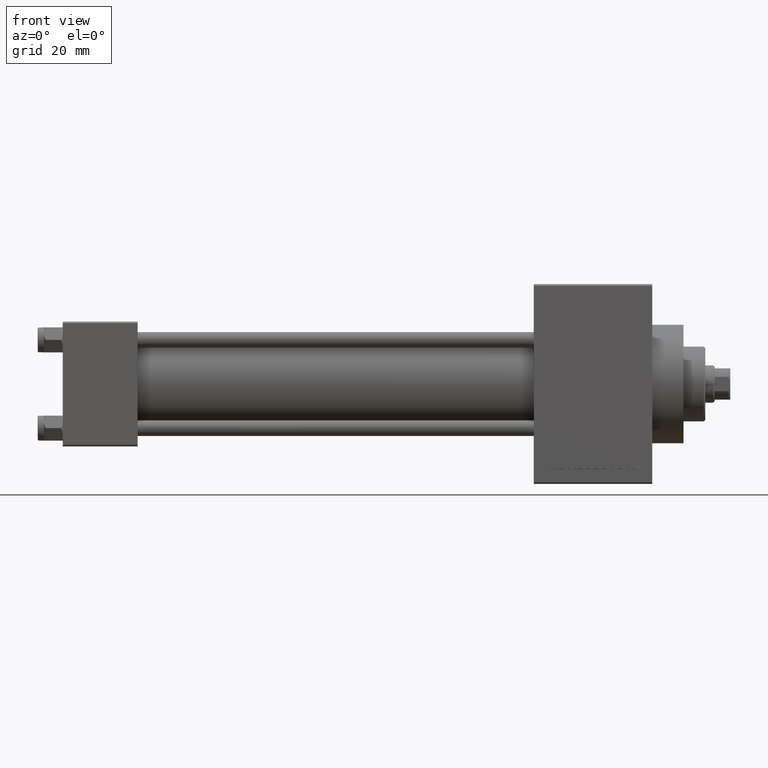
[diagram: clean part render]
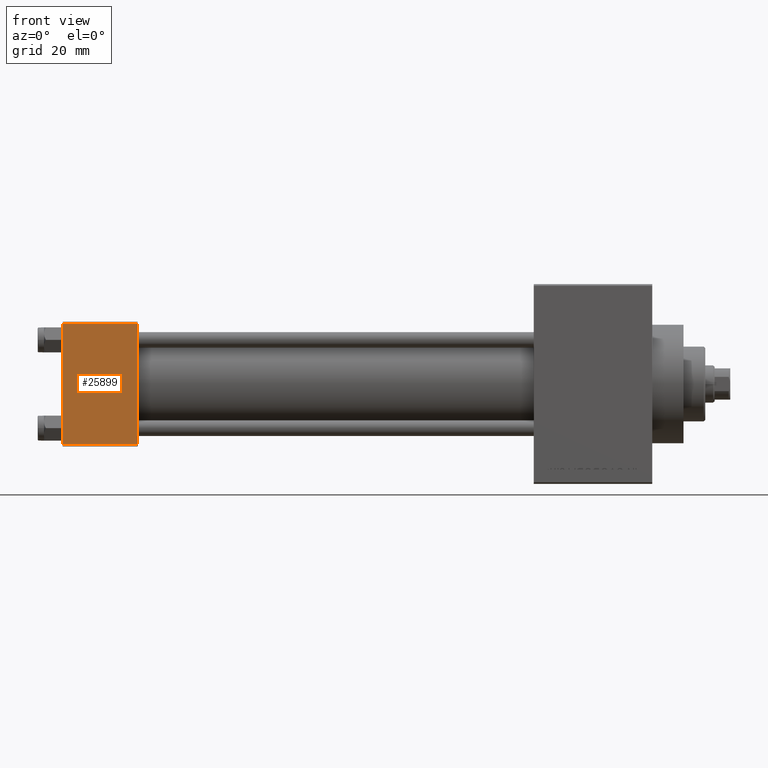
[diagram: same view with one face highlighted and labeled with its STEP entity id]
A machine part, front view. The second image highlights one B-rep face of the part: STEP entity #25899.
In plain terms, the highlighted planar face has unit normal (0, 1, 0).
Its self-contained STEP definition (entity closure, byte-faithful):
#1053 = CARTESIAN_POINT ( 'NONE',  ( 24.00000000000000000, -20.00000000000000355, 19.49999999999998224 ) ) ;
#3279 = CARTESIAN_POINT ( 'NONE',  ( 0.000000000000000000, -20.00000000000000000, -19.49999999999999645 ) ) ;
#4300 = ORIENTED_EDGE ( 'NONE', *, *, #8562, .T. ) ;
#8247 = PLANE ( 'NONE',  #38713 ) ;
#8562 = EDGE_CURVE ( 'NONE', #19616, #9542, #27743, .T. ) ;
#9542 = VERTEX_POINT ( 'NONE', #3279 ) ;
#9812 = EDGE_CURVE ( 'NONE', #9542, #19076, #31920, .T. ) ;
#10684 = VERTEX_POINT ( 'NONE', #20939 ) ;
#11268 = ORIENTED_EDGE ( 'NONE', *, *, #32120, .T. ) ;
#15862 = LINE ( 'NONE', #1053, #45113 ) ;
#16445 = LINE ( 'NONE', #31042, #30741 ) ;
#17225 = DIRECTION ( 'NONE',  ( -1.000000000000000000, 0.000000000000000000, 0.000000000000000000 ) ) ;
#19076 = VERTEX_POINT ( 'NONE', #44673 ) ;
#19487 = CARTESIAN_POINT ( 'NONE',  ( 0.000000000000000000, -20.00000000000000355, 19.49999999999998224 ) ) ;
#19616 = VERTEX_POINT ( 'NONE', #19487 ) ;
#20477 = ORIENTED_EDGE ( 'NONE', *, *, #39732, .F. ) ;
#20939 = CARTESIAN_POINT ( 'NONE',  ( 24.00000000000000000, -20.00000000000000355, 19.49999999999998224 ) ) ;
#22846 = CARTESIAN_POINT ( 'NONE',  ( 24.00000000000000000, -20.00000000000000355, 19.99999999999998934 ) ) ;
#23916 = DIRECTION ( 'NONE',  ( 0.000000000000000000, 8.673617379884036705E-17, -1.000000000000000000 ) ) ;
#25899 = ADVANCED_FACE ( 'NONE', ( #25957 ), #8247, .F. ) ;
#25957 = FACE_OUTER_BOUND ( 'NONE', #35940, .T. ) ;
#27743 = LINE ( 'NONE', #42330, #44503 ) ;
#30741 = VECTOR ( 'NONE', #45624, 1000.000000000000000 ) ;
#30807 = VECTOR ( 'NONE', #46510, 1000.000000000000000 ) ;
#31042 = CARTESIAN_POINT ( 'NONE',  ( 24.00000000000000000, -20.00000000000000355, 19.99999999999998934 ) ) ;
#31920 = LINE ( 'NONE', #43620, #30807 ) ;
#32120 = EDGE_CURVE ( 'NONE', #10684, #19616, #15862, .T. ) ;
#33143 = DIRECTION ( 'NONE',  ( 0.000000000000000000, -8.673617379884036705E-17, 1.000000000000000000 ) ) ;
#35940 = EDGE_LOOP ( 'NONE', ( #4300, #44292, #20477, #11268 ) ) ;
#37422 = DIRECTION ( 'NONE',  ( -0.000000000000000000, 1.000000000000000000, 8.673617379884036705E-17 ) ) ;
#38713 = AXIS2_PLACEMENT_3D ( 'NONE', #22846, #37422, #33143 ) ;
#39732 = EDGE_CURVE ( 'NONE', #10684, #19076, #16445, .T. ) ;
#42330 = CARTESIAN_POINT ( 'NONE',  ( 0.000000000000000000, -20.00000000000000355, 19.99999999999998934 ) ) ;
#43620 = CARTESIAN_POINT ( 'NONE',  ( 24.00000000000000000, -20.00000000000000000, -19.49999999999999645 ) ) ;
#44292 = ORIENTED_EDGE ( 'NONE', *, *, #9812, .T. ) ;
#44503 = VECTOR ( 'NONE', #23916, 1000.000000000000000 ) ;
#44673 = CARTESIAN_POINT ( 'NONE',  ( 24.00000000000000000, -20.00000000000000000, -19.49999999999999645 ) ) ;
#45113 = VECTOR ( 'NONE', #17225, 1000.000000000000000 ) ;
#45624 = DIRECTION ( 'NONE',  ( 0.000000000000000000, 8.673617379884036705E-17, -1.000000000000000000 ) ) ;
#46510 = DIRECTION ( 'NONE',  ( 1.000000000000000000, 0.000000000000000000, 0.000000000000000000 ) ) ;